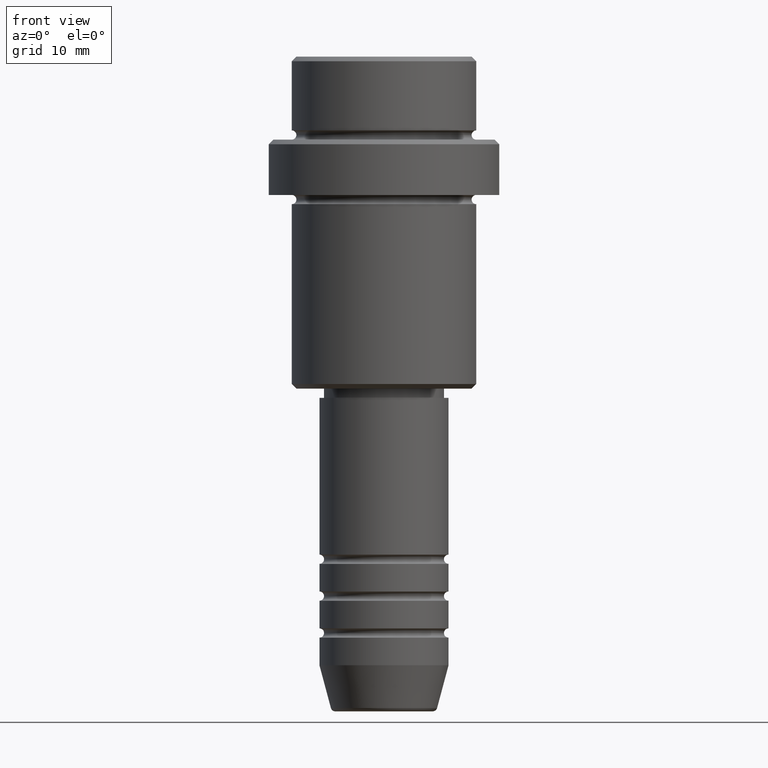
[diagram: clean part render]
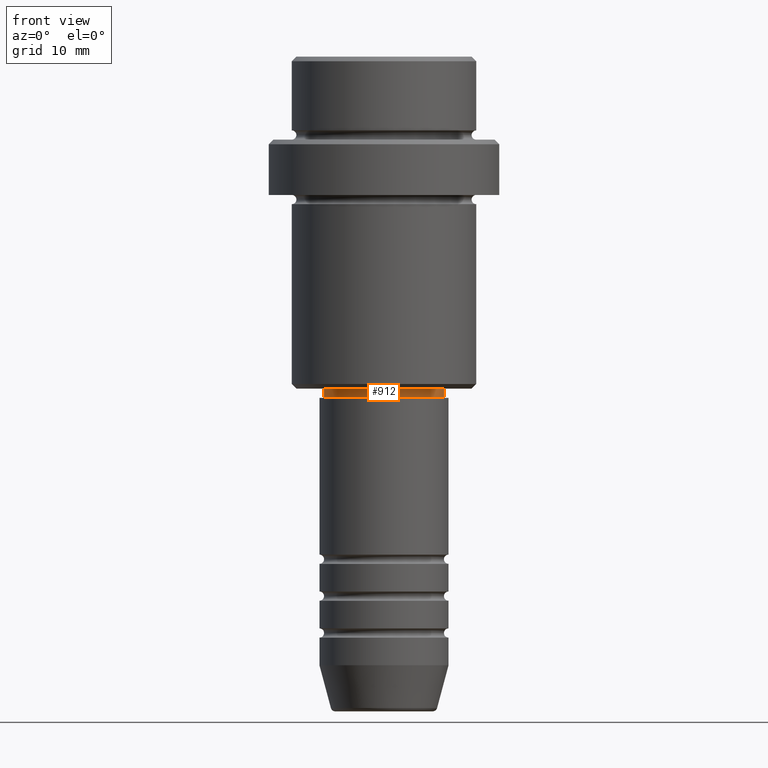
[diagram: same view with one face highlighted and labeled with its STEP entity id]
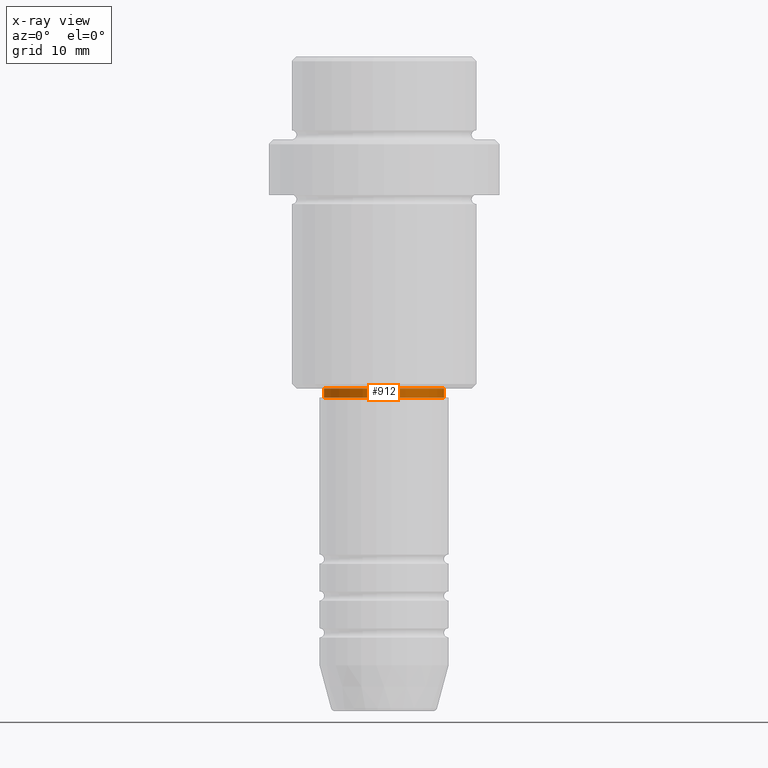
[diagram: x-ray of the same camera — body ghosted, the highlighted face saturated]
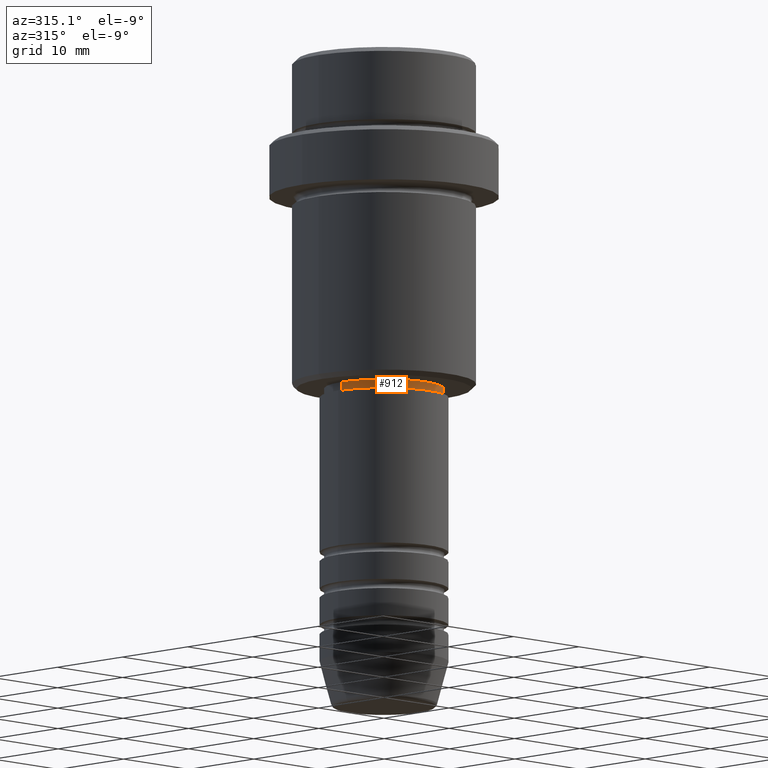
[diagram: same view with one face highlighted and labeled with its STEP entity id]
A machine part, front view. The second image highlights one B-rep face of the part: STEP entity #912.
The next image is the same camera in x-ray: the body ghosted, the highlighted face saturated — about 0% of this face is hidden behind the body in this view.
A second angle (auxiliary view) of the same face is appended — the face is thin or edge-on in the first view.
In plain terms, the highlighted cylindrical surface (partial cylindrical patch) has radius 6.5 mm, axis along (-0, -0, 1).
Its self-contained STEP definition (entity closure, byte-faithful):
#17 = DIRECTION ( 'NONE',  ( -0.000000000000000000, -0.000000000000000000, 1.000000000000000000 ) ) ;
#72 = AXIS2_PLACEMENT_3D ( 'NONE', #858, #1204, #1097 ) ;
#78 = EDGE_CURVE ( 'NONE', #201, #1401, #388, .T. ) ;
#108 = ORIENTED_EDGE ( 'NONE', *, *, #178, .F. ) ;
#113 = CARTESIAN_POINT ( 'NONE',  ( 0.000000000000000000, 0.000000000000000000, -36.00000000000000711 ) ) ;
#178 = EDGE_CURVE ( 'NONE', #590, #1401, #1110, .T. ) ;
#185 = EDGE_CURVE ( 'NONE', #911, #201, #213, .T. ) ;
#201 = VERTEX_POINT ( 'NONE', #878 ) ;
#213 = CIRCLE ( 'NONE', #72, 6.499999999999994671 ) ;
#250 = CARTESIAN_POINT ( 'NONE',  ( -6.499999999999994671, 7.960204194457788574E-16, 0.000000000000000000 ) ) ;
#276 = AXIS2_PLACEMENT_3D ( 'NONE', #113, #322, #328 ) ;
#302 = CARTESIAN_POINT ( 'NONE',  ( -6.499999999999994671, 7.960204194457788574E-16, -37.00000000000000000 ) ) ;
#322 = DIRECTION ( 'NONE',  ( -0.000000000000000000, -0.000000000000000000, 1.000000000000000000 ) ) ;
#324 = EDGE_CURVE ( 'NONE', #911, #590, #785, .T. ) ;
#328 = DIRECTION ( 'NONE',  ( 1.000000000000000000, 0.000000000000000000, 0.000000000000000000 ) ) ;
#350 = FACE_OUTER_BOUND ( 'NONE', #1188, .T. ) ;
#388 = LINE ( 'NONE', #1276, #922 ) ;
#402 = DIRECTION ( 'NONE',  ( -0.000000000000000000, -0.000000000000000000, 1.000000000000000000 ) ) ;
#479 = CYLINDRICAL_SURFACE ( 'NONE', #652, 6.499999999999994671 ) ;
#486 = CARTESIAN_POINT ( 'NONE',  ( -6.499999999999994671, 7.960204194457788574E-16, -36.00000000000000711 ) ) ;
#590 = VERTEX_POINT ( 'NONE', #486 ) ;
#652 = AXIS2_PLACEMENT_3D ( 'NONE', #916, #810, #1369 ) ;
#785 = LINE ( 'NONE', #250, #951 ) ;
#810 = DIRECTION ( 'NONE',  ( -0.000000000000000000, -0.000000000000000000, 1.000000000000000000 ) ) ;
#858 = CARTESIAN_POINT ( 'NONE',  ( 0.000000000000000000, 0.000000000000000000, -37.00000000000000000 ) ) ;
#878 = CARTESIAN_POINT ( 'NONE',  ( 6.499999999999994671, 0.000000000000000000, -37.00000000000000000 ) ) ;
#901 = CARTESIAN_POINT ( 'NONE',  ( 6.499999999999994671, 0.000000000000000000, -36.00000000000000711 ) ) ;
#911 = VERTEX_POINT ( 'NONE', #302 ) ;
#912 = ADVANCED_FACE ( 'NONE', ( #350 ), #479, .T. ) ;
#916 = CARTESIAN_POINT ( 'NONE',  ( 0.000000000000000000, 0.000000000000000000, 0.000000000000000000 ) ) ;
#922 = VECTOR ( 'NONE', #402, 1000.000000000000000 ) ;
#942 = ORIENTED_EDGE ( 'NONE', *, *, #78, .T. ) ;
#951 = VECTOR ( 'NONE', #17, 1000.000000000000000 ) ;
#1091 = ORIENTED_EDGE ( 'NONE', *, *, #185, .T. ) ;
#1097 = DIRECTION ( 'NONE',  ( 1.000000000000000000, 0.000000000000000000, 0.000000000000000000 ) ) ;
#1110 = CIRCLE ( 'NONE', #276, 6.499999999999994671 ) ;
#1188 = EDGE_LOOP ( 'NONE', ( #1279, #1091, #942, #108 ) ) ;
#1204 = DIRECTION ( 'NONE',  ( -0.000000000000000000, -0.000000000000000000, 1.000000000000000000 ) ) ;
#1276 = CARTESIAN_POINT ( 'NONE',  ( 6.499999999999994671, 0.000000000000000000, 0.000000000000000000 ) ) ;
#1279 = ORIENTED_EDGE ( 'NONE', *, *, #324, .F. ) ;
#1369 = DIRECTION ( 'NONE',  ( 1.000000000000000000, 0.000000000000000000, 0.000000000000000000 ) ) ;
#1401 = VERTEX_POINT ( 'NONE', #901 ) ;